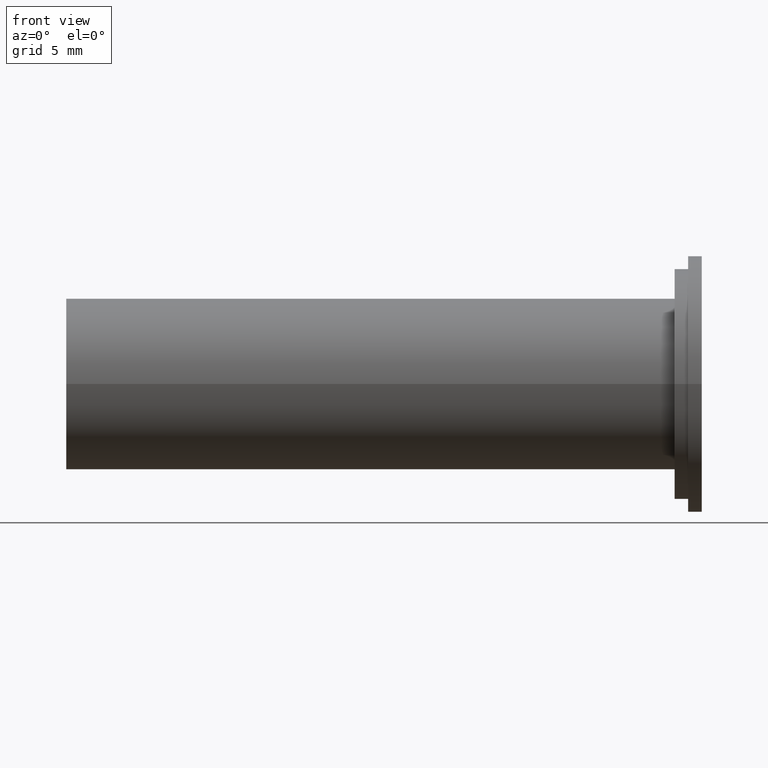
[diagram: clean part render]
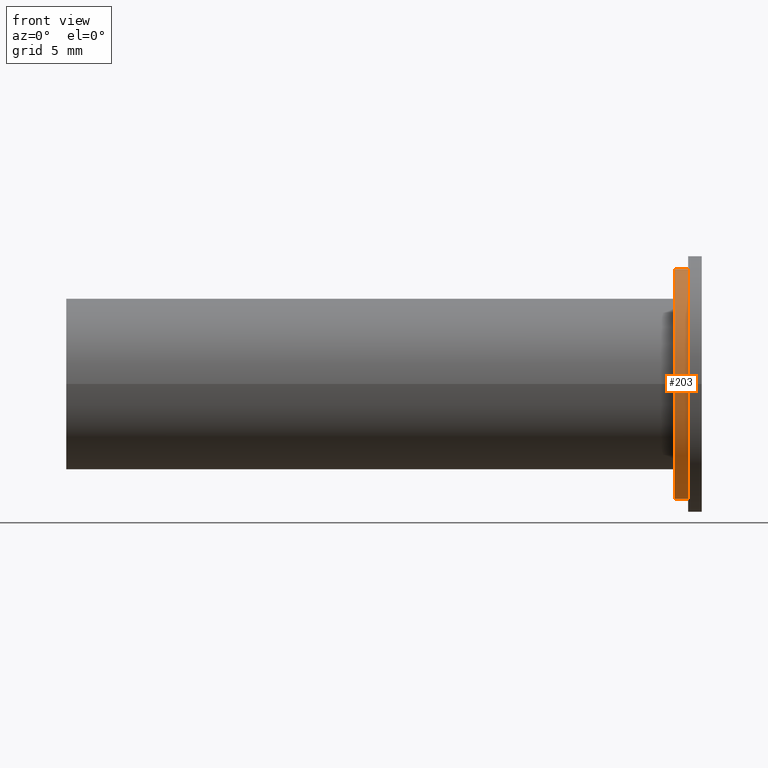
[diagram: same view with one face highlighted and labeled with its STEP entity id]
A machine part, front view. The second image highlights one B-rep face of the part: STEP entity #203.
In plain terms, the highlighted cylindrical surface (bore or boss wall) has radius 8.5 mm, axis along (1, 0, 0).
Its self-contained STEP definition (entity closure, byte-faithful):
#29=CYLINDRICAL_SURFACE('',#255,8.5);
#43=FACE_OUTER_BOUND('',#61,.T.);
#61=EDGE_LOOP('',(#183,#184,#185,#186));
#71=LINE('',#380,#81);
#81=VECTOR('',#325,8.5);
#91=CIRCLE('',#243,8.5);
#96=CIRCLE('',#254,8.5);
#106=VERTEX_POINT('',#358);
#111=VERTEX_POINT('',#377);
#127=EDGE_CURVE('',#106,#106,#91,.T.);
#135=EDGE_CURVE('',#111,#111,#96,.T.);
#136=EDGE_CURVE('',#106,#111,#71,.T.);
#183=ORIENTED_EDGE('',*,*,#127,.F.);
#184=ORIENTED_EDGE('',*,*,#136,.T.);
#185=ORIENTED_EDGE('',*,*,#135,.T.);
#186=ORIENTED_EDGE('',*,*,#136,.F.);
#203=ADVANCED_FACE('',(#43),#29,.T.);
#243=AXIS2_PLACEMENT_3D('',#359,#296,#297);
#254=AXIS2_PLACEMENT_3D('',#378,#321,#322);
#255=AXIS2_PLACEMENT_3D('',#379,#323,#324);
#296=DIRECTION('center_axis',(1.,0.,0.));
#297=DIRECTION('ref_axis',(0.,0.,-1.));
#321=DIRECTION('center_axis',(1.,0.,0.));
#322=DIRECTION('ref_axis',(0.,0.,-1.));
#323=DIRECTION('center_axis',(1.,0.,0.));
#324=DIRECTION('ref_axis',(0.,1.,0.));
#325=DIRECTION('',(-1.,0.,0.));
#358=CARTESIAN_POINT('',(-1.,-8.5,-1.04094977927525E-15));
#359=CARTESIAN_POINT('Origin',(-1.,0.,0.));
#377=CARTESIAN_POINT('',(-2.,-8.5,-1.04094977927525E-15));
#378=CARTESIAN_POINT('Origin',(-2.,0.,0.));
#379=CARTESIAN_POINT('Origin',(-1.5,0.,0.));
#380=CARTESIAN_POINT('',(-1.5,-8.5,-1.04094977927525E-15));